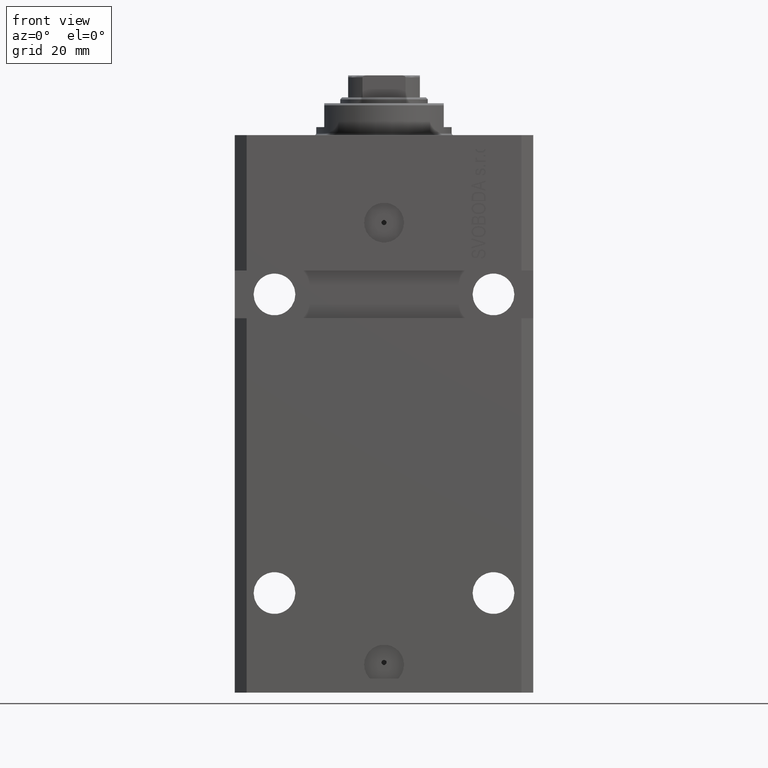
[diagram: clean part render]
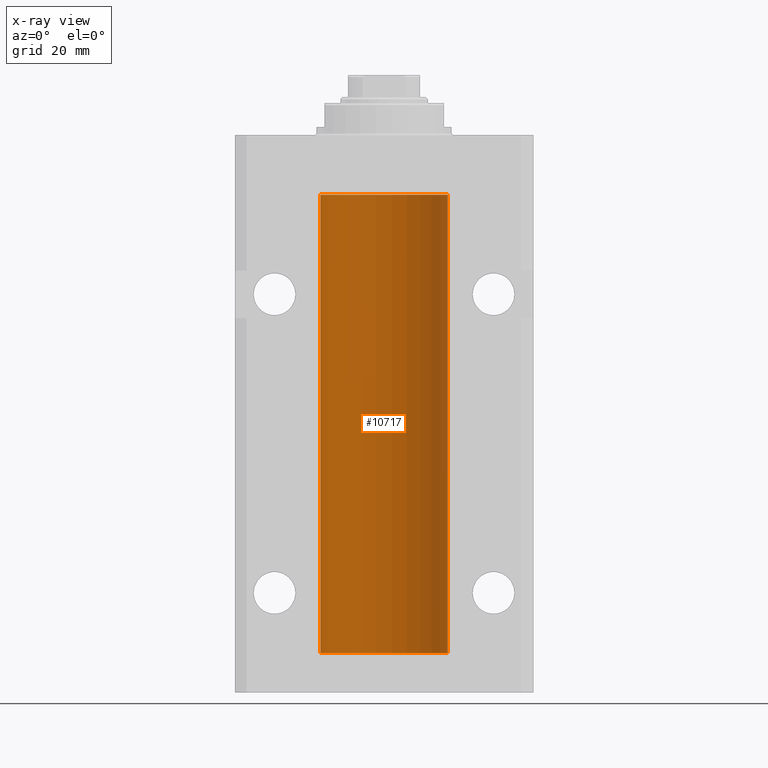
[diagram: x-ray — body ghosted, one internal face saturated and labeled with its STEP entity id]
A machine part, front view, then the same camera in x-ray: the body is ghosted and one INTERNAL B-rep face — a face not visible from any outside direction — is saturated and labeled: STEP entity #10717.
In plain terms, the highlighted cylindrical surface (partial cylindrical patch) has radius 16 mm, axis along (0, 0, 1).
Its self-contained STEP definition (entity closure, byte-faithful):
#2980 = AXIS2_PLACEMENT_3D ( 'NONE', #22311, #25673, #40287 ) ;
#3892 = CARTESIAN_POINT ( 'NONE',  ( -15.99070426498503217, 0.5462220647145618058, -22.31460064614143590 ) ) ;
#4123 = CARTESIAN_POINT ( 'NONE',  ( -15.99711699979842017, 0.3253759916140657737, -22.55856151623175521 ) ) ;
#4435 = CARTESIAN_POINT ( 'NONE',  ( -15.99070426498503217, 0.5462220647145575869, -128.3146006461414288 ) ) ;
#4642 = ORIENTED_EDGE ( 'NONE', *, *, #13183, .T. ) ;
#5751 = ORIENTED_EDGE ( 'NONE', *, *, #15093, .T. ) ;
#6071 = EDGE_LOOP ( 'NONE', ( #21367, #20752, #32691, #33899, #22715, #5751, #17393, #4642 ) ) ;
#7705 = CARTESIAN_POINT ( 'NONE',  ( -15.98779057735153941, 0.6249419637998100407, -21.83670145863507273 ) ) ;
#8703 = CARTESIAN_POINT ( 'NONE',  ( -16.00000000000000355, 0.08259886010188438599, -127.3749999999999574 ) ) ;
#8716 = CARTESIAN_POINT ( 'NONE',  ( -16.00000000000013145, 3.685127464164956467E-13, -128.6250000000034390 ) ) ;
#8732 = CARTESIAN_POINT ( 'NONE',  ( 16.00000000000000000, 0.000000000000000000, -130.0999999999999943 ) ) ;
#8898 = FACE_OUTER_BOUND ( 'NONE', #6071, .T. ) ;
#9242 = CARTESIAN_POINT ( 'NONE',  ( 16.00000000000000000, 0.000000000000000000, -15.00000000000000000 ) ) ;
#9603 = CYLINDRICAL_SURFACE ( 'NONE', #43874, 16.00000000000000000 ) ;
#9957 = CARTESIAN_POINT ( 'NONE',  ( -16.00000000000000000, 1.643679961284177128E-16, -21.37499999999999645 ) ) ;
#10717 = ADVANCED_FACE ( 'NONE', ( #8898 ), #9603, .F. ) ;
#11144 = LINE ( 'NONE', #14006, #30364 ) ;
#11537 = CARTESIAN_POINT ( 'NONE',  ( -15.99070653155267685, 0.5573233280232986475, -21.67348148680506625 ) ) ;
#12518 = CARTESIAN_POINT ( 'NONE',  ( -15.99711699979841661, 0.3253759916140733233, -128.5585615162317765 ) ) ;
#13183 = EDGE_CURVE ( 'NONE', #26389, #26683, #37813, .T. ) ;
#14006 = CARTESIAN_POINT ( 'NONE',  ( -16.00000000000000000, 1.959434878635765131E-15, -130.0999999999999943 ) ) ;
#14654 = DIRECTION ( 'NONE',  ( 0.000000000000000000, 0.000000000000000000, 1.000000000000000000 ) ) ;
#15093 = EDGE_CURVE ( 'NONE', #42426, #42585, #38230, .T. ) ;
#15641 = CARTESIAN_POINT ( 'NONE',  ( -15.99548640841682712, 0.3843705577988635880, -127.5004662852700932 ) ) ;
#16531 = EDGE_CURVE ( 'NONE', #32011, #42278, #31795, .T. ) ;
#17266 = VECTOR ( 'NONE', #24378, 1000.000000000000000 ) ;
#17393 = ORIENTED_EDGE ( 'NONE', *, *, #21401, .F. ) ;
#18712 = CARTESIAN_POINT ( 'NONE',  ( -16.00000000000000000, 0.1631714642025800244, -22.62499999999985789 ) ) ;
#18950 = CARTESIAN_POINT ( 'NONE',  ( -15.99548640841683067, 0.3843705577988847377, -21.50046628527008608 ) ) ;
#19017 = CARTESIAN_POINT ( 'NONE',  ( -15.99070653155267685, 0.5573233280232815501, -127.6734814868050449 ) ) ;
#19708 = CARTESIAN_POINT ( 'NONE',  ( -15.98778717651346604, 0.6250289588122058815, -128.0813158568705603 ) ) ;
#19780 = CIRCLE ( 'NONE', #2980, 16.00000000000000000 ) ;
#19894 = DIRECTION ( 'NONE',  ( -0.000000000000000000, -0.000000000000000000, 1.000000000000000000 ) ) ;
#20537 = CARTESIAN_POINT ( 'NONE',  ( 16.00000000000000000, 0.000000000000000000, -130.0999999999999943 ) ) ;
#20752 = ORIENTED_EDGE ( 'NONE', *, *, #25957, .F. ) ;
#21367 = ORIENTED_EDGE ( 'NONE', *, *, #38930, .F. ) ;
#21401 = EDGE_CURVE ( 'NONE', #26389, #42585, #11144, .T. ) ;
#21852 = DIRECTION ( 'NONE',  ( -0.000000000000000000, -0.000000000000000000, 1.000000000000000000 ) ) ;
#22069 = CARTESIAN_POINT ( 'NONE',  ( -15.99934216141748244, 0.1636497843296417787, -21.39126528029306229 ) ) ;
#22311 = CARTESIAN_POINT ( 'NONE',  ( 0.000000000000000000, 0.000000000000000000, -130.0999999999999943 ) ) ;
#22715 = ORIENTED_EDGE ( 'NONE', *, *, #36556, .F. ) ;
#23302 = CARTESIAN_POINT ( 'NONE',  ( -15.99999999999999289, 0.1631714642025817730, -128.6249999999999147 ) ) ;
#24106 = LINE ( 'NONE', #42309, #33913 ) ;
#24378 = DIRECTION ( 'NONE',  ( -0.000000000000000000, -0.000000000000000000, 1.000000000000000000 ) ) ;
#25453 = CARTESIAN_POINT ( 'NONE',  ( -16.00000000000000000, 1.959434878635765131E-15, -130.0999999999999943 ) ) ;
#25661 = CARTESIAN_POINT ( 'NONE',  ( -16.00000000000000711, 0.08259886010189904093, -21.37500000000000000 ) ) ;
#25673 = DIRECTION ( 'NONE',  ( 0.000000000000000000, 0.000000000000000000, 1.000000000000000000 ) ) ;
#25954 = EDGE_CURVE ( 'NONE', #42278, #42710, #42731, .T. ) ;
#25957 = EDGE_CURVE ( 'NONE', #32011, #36436, #19780, .T. ) ;
#26138 = CARTESIAN_POINT ( 'NONE',  ( -16.00000000000013145, 3.685127038166941002E-13, -22.62500000000341771 ) ) ;
#26389 = VERTEX_POINT ( 'NONE', #44057 ) ;
#26683 = VERTEX_POINT ( 'NONE', #8716 ) ;
#26918 = CARTESIAN_POINT ( 'NONE',  ( -16.00000000000013145, 3.685127038166941002E-13, -22.62500000000341771 ) ) ;
#27134 = CARTESIAN_POINT ( 'NONE',  ( -16.00000000000013145, 3.685127464164956467E-13, -128.6250000000034390 ) ) ;
#27704 = DIRECTION ( 'NONE',  ( -0.000000000000000000, -0.000000000000000000, 1.000000000000000000 ) ) ;
#29025 = CARTESIAN_POINT ( 'NONE',  ( -15.99707730059171240, 0.3150375992092407373, -21.45402333202571654 ) ) ;
#29739 = CARTESIAN_POINT ( 'NONE',  ( -16.00000000000000000, 1.643679961284177128E-16, -21.37499999999999645 ) ) ;
#30364 = VECTOR ( 'NONE', #46824, 1000.000000000000000 ) ;
#31795 = LINE ( 'NONE', #20537, #17266 ) ;
#32011 = VERTEX_POINT ( 'NONE', #8732 ) ;
#32652 = LINE ( 'NONE', #25453, #45332 ) ;
#32691 = ORIENTED_EDGE ( 'NONE', *, *, #16531, .T. ) ;
#33638 = CARTESIAN_POINT ( 'NONE',  ( -15.99228023727723702, 0.5003781296993445871, -128.3834782955424032 ) ) ;
#33899 = ORIENTED_EDGE ( 'NONE', *, *, #25954, .T. ) ;
#33913 = VECTOR ( 'NONE', #27704, 1000.000000000000000 ) ;
#34289 = CARTESIAN_POINT ( 'NONE',  ( -16.00000000000000000, 1.959434878635765131E-15, -130.0999999999999943 ) ) ;
#34516 = DIRECTION ( 'NONE',  ( 1.000000000000000000, 0.000000000000000000, 0.000000000000000000 ) ) ;
#34556 = CARTESIAN_POINT ( 'NONE',  ( -15.98779057735154296, 0.6249419637998029353, -127.8367014586350763 ) ) ;
#35861 = AXIS2_PLACEMENT_3D ( 'NONE', #40048, #14654, #35980 ) ;
#35980 = DIRECTION ( 'NONE',  ( 1.000000000000000000, 0.000000000000000000, 0.000000000000000000 ) ) ;
#36436 = VERTEX_POINT ( 'NONE', #34289 ) ;
#36556 = EDGE_CURVE ( 'NONE', #42426, #42710, #32652, .T. ) ;
#36912 = CARTESIAN_POINT ( 'NONE',  ( -15.99228023727724413, 0.5003781296993413674, -22.38347829554236057 ) ) ;
#37678 = CARTESIAN_POINT ( 'NONE',  ( -15.98844267028591482, 0.6088369347963276113, -128.1632473502432674 ) ) ;
#37813 = B_SPLINE_CURVE_WITH_KNOTS ( 'NONE', 3,
 ( #44639, #8703, #37907, #44876, #15641, #19017, #34556, #19708, #37678, #4435, #33638, #12518, #23302, #27134 ),
 .UNSPECIFIED., .F., .F.,
 ( 4, 2, 2, 2, 2, 2, 4 ),
 ( 2.457764170500729066E-18, 0.0002442776652680811759, 0.0004885553305361599666, 0.0009771106610723173311, 0.001221388326340437647, 0.001465665991608557962, 0.001954221322144799027 ),
 .UNSPECIFIED. ) ;
#37907 = CARTESIAN_POINT ( 'NONE',  ( -15.99934216141748244, 0.1636497843296232380, -127.3912652802930694 ) ) ;
#38108 = CARTESIAN_POINT ( 'NONE',  ( 0.000000000000000000, 0.000000000000000000, -130.0999999999999943 ) ) ;
#38230 = B_SPLINE_CURVE_WITH_KNOTS ( 'NONE', 3,
 ( #29739, #25661, #22069, #29025, #18950, #11537, #7705, #47229, #43638, #3892, #36912, #4123, #18712, #26138 ),
 .UNSPECIFIED., .F., .F.,
 ( 4, 2, 2, 2, 2, 2, 4 ),
 ( 1.597328219370744179E-19, 0.0002442776652680942405, 0.0004885553305361882643, 0.0009771106610723839011, 0.001221388326340481665, 0.001465665991608579430, 0.001954221322144767369 ),
 .UNSPECIFIED. ) ;
#38930 = EDGE_CURVE ( 'NONE', #36436, #26683, #24106, .T. ) ;
#40048 = CARTESIAN_POINT ( 'NONE',  ( 0.000000000000000000, 0.000000000000000000, -15.00000000000000000 ) ) ;
#40287 = DIRECTION ( 'NONE',  ( 1.000000000000000000, 0.000000000000000000, 0.000000000000000000 ) ) ;
#42278 = VERTEX_POINT ( 'NONE', #9242 ) ;
#42309 = CARTESIAN_POINT ( 'NONE',  ( -16.00000000000000000, 1.959434878635765131E-15, -130.0999999999999943 ) ) ;
#42426 = VERTEX_POINT ( 'NONE', #9957 ) ;
#42585 = VERTEX_POINT ( 'NONE', #26918 ) ;
#42710 = VERTEX_POINT ( 'NONE', #46764 ) ;
#42731 = CIRCLE ( 'NONE', #35861, 16.00000000000000000 ) ;
#43638 = CARTESIAN_POINT ( 'NONE',  ( -15.98844267028591482, 0.6088369347963316081, -22.16324735024328518 ) ) ;
#43874 = AXIS2_PLACEMENT_3D ( 'NONE', #38108, #19894, #34516 ) ;
#44057 = CARTESIAN_POINT ( 'NONE',  ( -16.00000000000000000, -1.314639473218082033E-14, -127.3749999999999858 ) ) ;
#44639 = CARTESIAN_POINT ( 'NONE',  ( -16.00000000000000000, -1.314639473218082033E-14, -127.3749999999999858 ) ) ;
#44876 = CARTESIAN_POINT ( 'NONE',  ( -15.99707730059171240, 0.3150375992092247501, -127.4540233320256561 ) ) ;
#45332 = VECTOR ( 'NONE', #21852, 1000.000000000000000 ) ;
#46764 = CARTESIAN_POINT ( 'NONE',  ( -16.00000000000000000, 1.959434878635765131E-15, -15.00000000000000000 ) ) ;
#46824 = DIRECTION ( 'NONE',  ( -0.000000000000000000, -0.000000000000000000, 1.000000000000000000 ) ) ;
#47229 = CARTESIAN_POINT ( 'NONE',  ( -15.98778717651346071, 0.6250289588122140971, -22.08131585687052478 ) ) ;